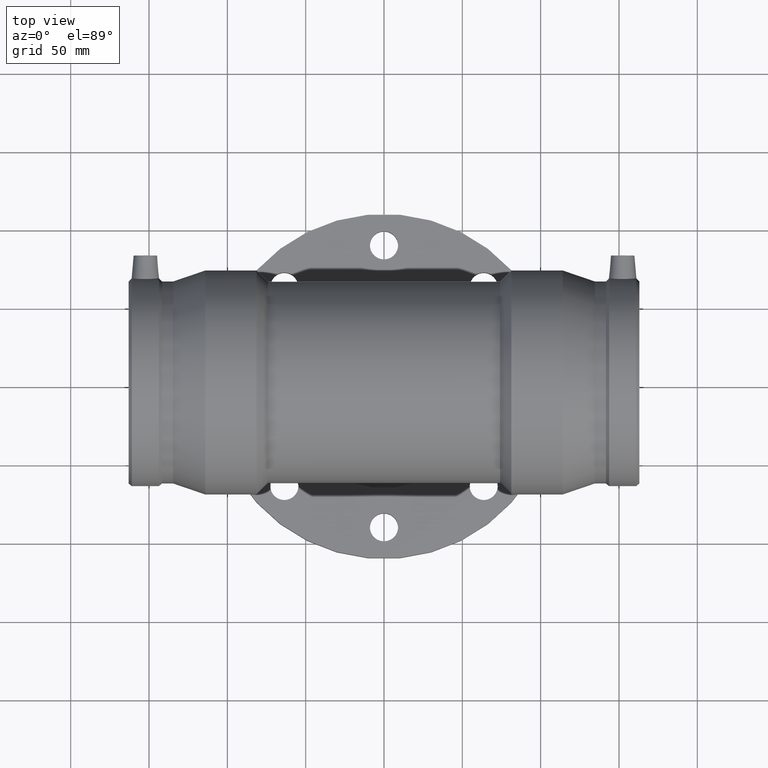
[diagram: clean part render]
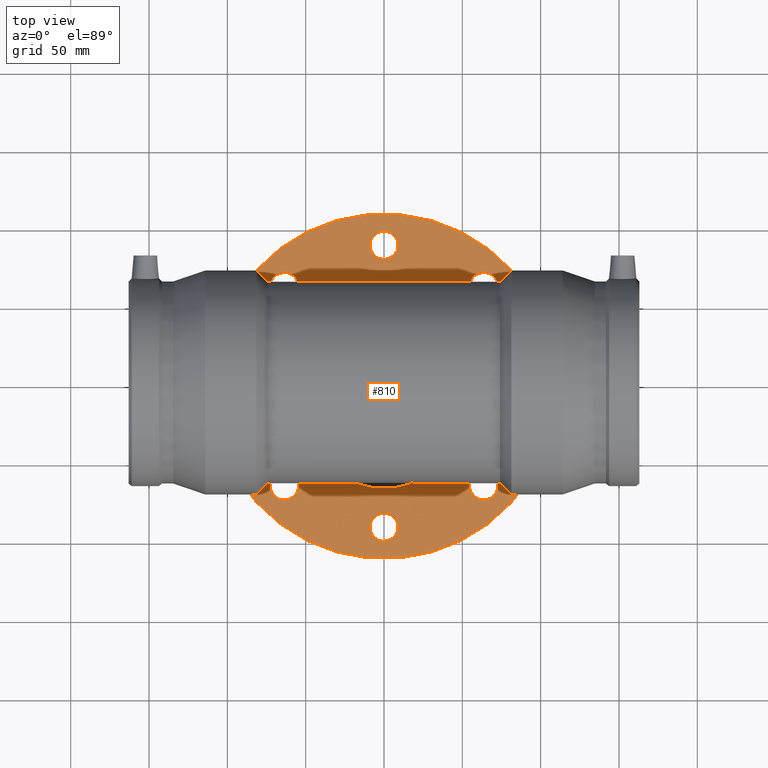
[diagram: same view with one face highlighted and labeled with its STEP entity id]
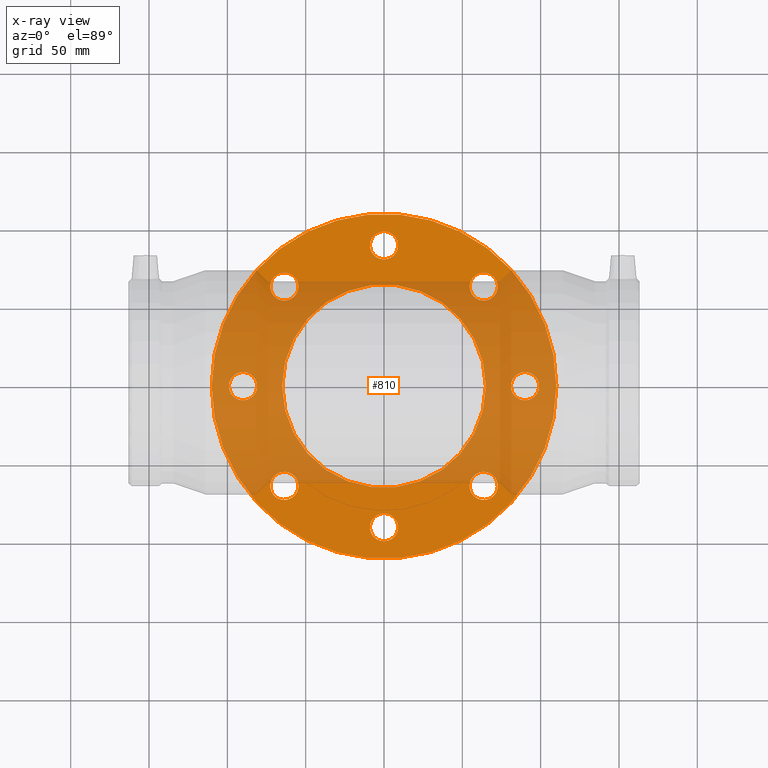
[diagram: x-ray of the same camera — body ghosted, the highlighted face saturated]
A machine part, top view. The second image highlights one B-rep face of the part: STEP entity #810.
The next image is the same camera in x-ray: the body ghosted, the highlighted face saturated — about 56% of this face is hidden behind the body in this view.
In plain terms, the highlighted planar face has unit normal (0, 0, 1).
Its self-contained STEP definition (entity closure, byte-faithful):
#46=FACE_BOUND('',#308,.T.);
#47=FACE_BOUND('',#309,.T.);
#48=FACE_BOUND('',#310,.T.);
#49=FACE_BOUND('',#311,.T.);
#50=FACE_BOUND('',#312,.T.);
#51=FACE_BOUND('',#313,.T.);
#52=FACE_BOUND('',#314,.T.);
#53=FACE_BOUND('',#315,.T.);
#54=FACE_BOUND('',#316,.T.);
#103=CIRCLE('',#862,9.);
#105=CIRCLE('',#865,9.);
#107=CIRCLE('',#868,9.);
#109=CIRCLE('',#871,9.);
#111=CIRCLE('',#874,9.);
#113=CIRCLE('',#877,9.);
#115=CIRCLE('',#880,9.);
#117=CIRCLE('',#883,9.);
#126=CIRCLE('',#900,65.);
#127=CIRCLE('',#902,110.);
#225=FACE_OUTER_BOUND('',#307,.T.);
#307=EDGE_LOOP('',(#644));
#308=EDGE_LOOP('',(#645));
#309=EDGE_LOOP('',(#646));
#310=EDGE_LOOP('',(#647));
#311=EDGE_LOOP('',(#648));
#312=EDGE_LOOP('',(#649));
#313=EDGE_LOOP('',(#650));
#314=EDGE_LOOP('',(#651));
#315=EDGE_LOOP('',(#652));
#316=EDGE_LOOP('',(#653));
#440=VERTEX_POINT('',#1604);
#442=VERTEX_POINT('',#1609);
#444=VERTEX_POINT('',#1614);
#446=VERTEX_POINT('',#1619);
#448=VERTEX_POINT('',#1624);
#450=VERTEX_POINT('',#1629);
#452=VERTEX_POINT('',#1634);
#454=VERTEX_POINT('',#1639);
#464=VERTEX_POINT('',#1756);
#465=VERTEX_POINT('',#1759);
#520=EDGE_CURVE('',#440,#440,#103,.T.);
#522=EDGE_CURVE('',#442,#442,#105,.T.);
#524=EDGE_CURVE('',#444,#444,#107,.T.);
#526=EDGE_CURVE('',#446,#446,#109,.T.);
#528=EDGE_CURVE('',#448,#448,#111,.T.);
#530=EDGE_CURVE('',#450,#450,#113,.T.);
#532=EDGE_CURVE('',#452,#452,#115,.T.);
#534=EDGE_CURVE('',#454,#454,#117,.T.);
#544=EDGE_CURVE('',#464,#464,#126,.T.);
#545=EDGE_CURVE('',#465,#465,#127,.T.);
#644=ORIENTED_EDGE('',*,*,#545,.F.);
#645=ORIENTED_EDGE('',*,*,#520,.T.);
#646=ORIENTED_EDGE('',*,*,#522,.T.);
#647=ORIENTED_EDGE('',*,*,#524,.T.);
#648=ORIENTED_EDGE('',*,*,#526,.T.);
#649=ORIENTED_EDGE('',*,*,#528,.T.);
#650=ORIENTED_EDGE('',*,*,#530,.T.);
#651=ORIENTED_EDGE('',*,*,#532,.T.);
#652=ORIENTED_EDGE('',*,*,#534,.T.);
#653=ORIENTED_EDGE('',*,*,#544,.T.);
#779=PLANE('',#901);
#810=ADVANCED_FACE('',(#225,#46,#47,#48,#49,#50,#51,#52,#53,#54),#779,.T.);
#862=AXIS2_PLACEMENT_3D('',#1605,#1003,#1004);
#865=AXIS2_PLACEMENT_3D('',#1610,#1009,#1010);
#868=AXIS2_PLACEMENT_3D('',#1615,#1015,#1016);
#871=AXIS2_PLACEMENT_3D('',#1620,#1021,#1022);
#874=AXIS2_PLACEMENT_3D('',#1625,#1027,#1028);
#877=AXIS2_PLACEMENT_3D('',#1630,#1033,#1034);
#880=AXIS2_PLACEMENT_3D('',#1635,#1039,#1040);
#883=AXIS2_PLACEMENT_3D('',#1640,#1045,#1046);
#900=AXIS2_PLACEMENT_3D('',#1757,#1079,#1080);
#901=AXIS2_PLACEMENT_3D('',#1758,#1081,#1082);
#902=AXIS2_PLACEMENT_3D('',#1760,#1083,#1084);
#1003=DIRECTION('center_axis',(-1.22464679914735E-16,0.,-1.));
#1004=DIRECTION('ref_axis',(0.707106781186547,0.707106781186548,6.15388486029117E-17));
#1009=DIRECTION('center_axis',(-1.22464679914735E-16,0.,-1.));
#1010=DIRECTION('ref_axis',(-1.2335811384724E-16,1.,2.10106771512886E-16));
#1015=DIRECTION('center_axis',(-1.22464679914735E-16,0.,-1.));
#1016=DIRECTION('ref_axis',(-0.707106781186548,0.707106781186547,3.58674694422859E-16));
#1021=DIRECTION('center_axis',(-1.22464679914735E-16,0.,-1.));
#1022=DIRECTION('ref_axis',(-1.,-1.2335811384724E-16,4.20213543025771E-16));
#1027=DIRECTION('center_axis',(-1.22464679914735E-16,0.,-1.));
#1028=DIRECTION('ref_axis',(-0.707106781186547,-0.707106781186548,3.58674694422859E-16));
#1033=DIRECTION('center_axis',(-1.22464679914735E-16,0.,-1.));
#1034=DIRECTION('ref_axis',(3.78702988737208E-33,-1.,2.10106771512885E-16));
#1039=DIRECTION('center_axis',(-1.22464679914735E-16,0.,-1.));
#1040=DIRECTION('ref_axis',(0.707106781186548,-0.707106781186547,6.15388486029116E-17));
#1045=DIRECTION('center_axis',(-1.22464679914735E-16,0.,-1.));
#1046=DIRECTION('ref_axis',(1.,0.,0.));
#1079=DIRECTION('center_axis',(-1.22464679914735E-16,0.,-1.));
#1080=DIRECTION('ref_axis',(1.,0.,-1.22464679914735E-16));
#1081=DIRECTION('center_axis',(1.22464679914735E-16,0.,1.));
#1082=DIRECTION('ref_axis',(1.,0.,0.));
#1083=DIRECTION('center_axis',(-1.22464679914735E-16,0.,-1.));
#1084=DIRECTION('ref_axis',(1.,0.,-1.22464679914735E-16));
#1604=CARTESIAN_POINT('',(-70.0035713374682,-70.0035713374682,-137.));
#1605=CARTESIAN_POINT('Origin',(-63.6396103067893,-63.6396103067893,-137.));
#1609=CARTESIAN_POINT('',(-1.35134798574648E-14,-99.,-137.));
#1610=CARTESIAN_POINT('Origin',(-1.36320135644408E-15,-90.,-137.));
#1614=CARTESIAN_POINT('',(70.0035713374682,-70.0035713374682,-137.));
#1615=CARTESIAN_POINT('Origin',(63.6396103067893,-63.6396103067893,-137.));
#1619=CARTESIAN_POINT('',(99.,1.54634501107282E-14,-137.));
#1620=CARTESIAN_POINT('Origin',(90.,1.21949558067087E-14,-137.));
#1624=CARTESIAN_POINT('',(70.0035713374682,70.0035713374682,-137.));
#1625=CARTESIAN_POINT('Origin',(63.6396103067893,63.6396103067893,-137.));
#1629=CARTESIAN_POINT('',(-2.2395264054466E-14,99.,-137.));
#1630=CARTESIAN_POINT('Origin',(-2.80085539474478E-14,90.,-137.));
#1634=CARTESIAN_POINT('',(-70.0035713374682,70.0035713374682,-137.));
#1635=CARTESIAN_POINT('Origin',(-63.6396103067893,63.6396103067893,-137.));
#1639=CARTESIAN_POINT('',(-99.,1.10218211923262E-15,-137.));
#1640=CARTESIAN_POINT('Origin',(-90.,0.,-137.));
#1756=CARTESIAN_POINT('',(-65.,0.,-137.));
#1757=CARTESIAN_POINT('Origin',(-1.67776611483187E-14,0.,-137.));
#1758=CARTESIAN_POINT('Origin',(-110.,0.,-137.));
#1759=CARTESIAN_POINT('',(-110.,0.,-137.));
#1760=CARTESIAN_POINT('Origin',(-1.67776611483187E-14,0.,-137.));